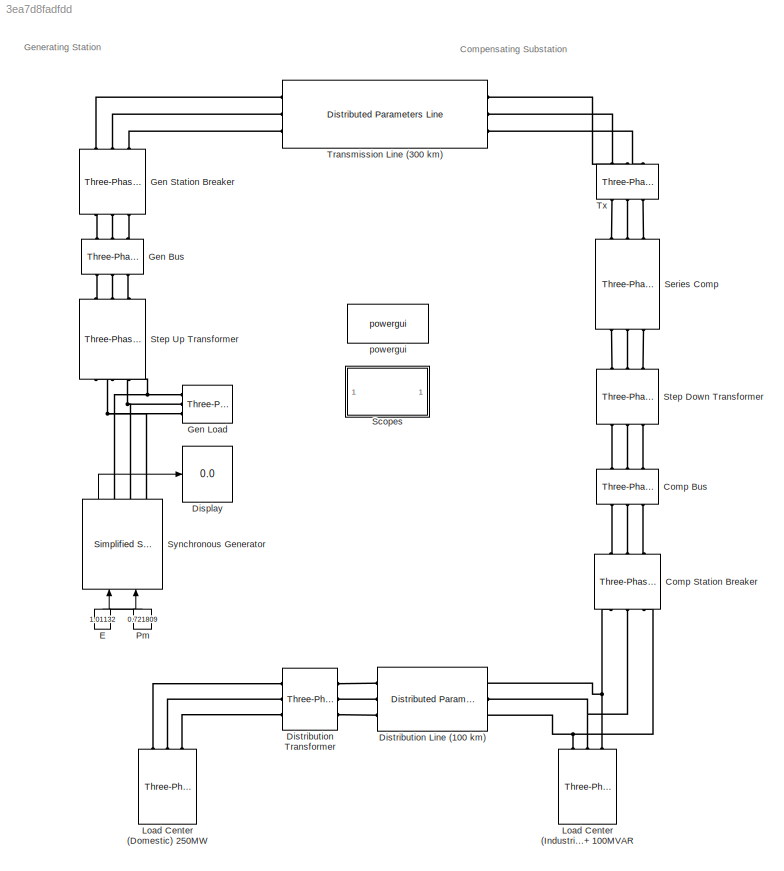
MODEL slx_3ea7d8fadfdd
KIND model
CONFIG AbsTol = auto
CONFIG EnableMultiTasking = off
CONFIG FixedStep = auto
CONFIG MaxStep = auto
CONFIG MinStep = auto
CONFIG RelTol = 1e-3
CONFIG SampleTimeConstraint = Unconstrained
CONFIG Solver = VariableStepAuto
CONFIG SolverName = VariableStepAuto
CONFIG StartTime = 0.0
CONFIG StopTime = 0.1
BLOCK [Reference] Comp Bus  REF=powerlib/Measurements/Three-Phase
V-I Measurement
  NameLocation = left
  Ports = [0, 0, 0, 0, 0, 3, 3]
  SourceBlock = powerlib/Measurements/Three-Phase\nV-I Measurement
  SourceProductBaseCode = PS
  SourceType = Three-Phase VI Measurement
BLOCK [Reference] Comp Station Breaker  REF=powerlib/Elements/Three-Phase Breaker
  NameLocation = left
  Ports = [0, 0, 0, 0, 0, 3, 3]
  SourceBlock = powerlib/Elements/Three-Phase Breaker
  SourceProductBaseCode = PS
  SourceType = Three-Phase Breaker
BLOCK [Display] Display
  Decimation = 1
  Ports = [1]
BLOCK [Reference] Distribution Line (100 km)  REF=powerlib/Elements/Distributed Parameters Line
  Ports = [0, 0, 0, 0, 0, 3, 3]
  SourceBlock = powerlib/Elements/Distributed Parameters Line
  SourceProductBaseCode = PS
  SourceType = Distributed Parameters Line
BLOCK [Reference] Distribution Transformer  REF=powerlib/Elements/Three-Phase
Transformer
(Two Windings)
  Ports = [0, 0, 0, 0, 0, 3, 3]
  SourceBlock = powerlib/Elements/Three-Phase\nTransformer\n(Two Windings)
  SourceProductBaseCode = PS
  SourceType = Three-Phase Transformer (Two Windings)
BLOCK [Constant] E
  NameLocation = right
  Value = 1.01132
BLOCK [Reference] Gen Bus  REF=powerlib/Measurements/Three-Phase
V-I Measurement
  NameLocation = right
  Ports = [0, 0, 0, 0, 0, 3, 3]
  SourceBlock = powerlib/Measurements/Three-Phase\nV-I Measurement
  SourceProductBaseCode = PS
  SourceType = Three-Phase VI Measurement
BLOCK [Reference] Gen Load  REF=powerlib/Elements/Three-Phase
Series RLC Load
  AttributesFormatString = \n
  NameLocation = top
  Ports = [0, 0, 0, 0, 0, 3]
  SourceBlock = powerlib/Elements/Three-Phase\nSeries RLC Load
  SourceProductBaseCode = PS
  SourceType = Three-Phase Series RLC Load
BLOCK [Reference] Gen Station Breaker  REF=powerlib/Elements/Three-Phase Breaker
  NameLocation = right
  Ports = [0, 0, 0, 0, 0, 3, 3]
  SourceBlock = powerlib/Elements/Three-Phase Breaker
  SourceProductBaseCode = PS
  SourceType = Three-Phase Breaker
BLOCK [Reference] Load Center (Domestic) 250MW  REF=powerlib/Elements/Three-Phase
Series RLC Load
  AttributesFormatString = \n
  NameLocation = right
  Ports = [0, 0, 0, 0, 0, 3]
  SourceBlock = powerlib/Elements/Three-Phase\nSeries RLC Load
  SourceProductBaseCode = PS
  SourceType = Three-Phase Series RLC Load
BLOCK [Reference] Load Center (Industrial) 650MW + 100MVAR  REF=powerlib/Elements/Three-Phase
Series RLC Load
  AttributesFormatString = \n
  NameLocation = right
  Ports = [0, 0, 0, 0, 0, 3]
  SourceBlock = powerlib/Elements/Three-Phase\nSeries RLC Load
  SourceProductBaseCode = PS
  SourceType = Three-Phase Series RLC Load
BLOCK [Constant] Pm
  NameLocation = right
  Value = 0.721809
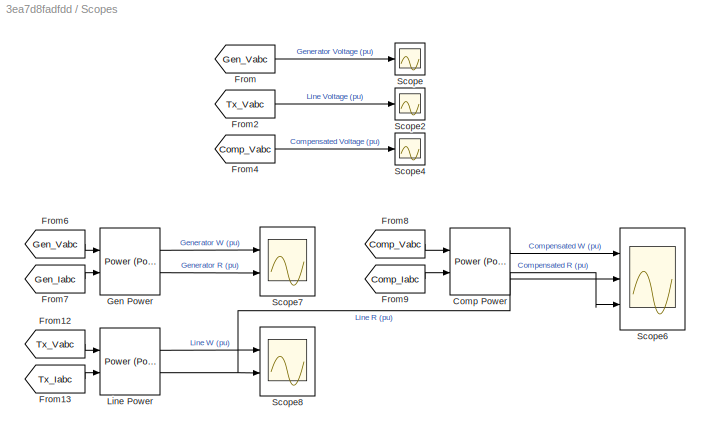
BLOCK [SubSystem] Scopes
  Ports = []
  RequestExecContextInheritance = off
BLOCK [Reference] Scopes/Comp Power  REF=powerlib_meascontrol/Measurements/Power
(Positive-Sequence)
  Ports = [2, 2]
  SourceBlock = powerlib_meascontrol/Measurements/Power\n(Positive-Sequence)
  SourceProductBaseCode = PS
  SourceType = Power (Positive-Sequence)
BLOCK [From] Scopes/From
  GotoTag = Gen_Vabc
  TagVisibility = global
BLOCK [From] Scopes/From12
  GotoTag = Tx_Vabc
  TagVisibility = global
BLOCK [From] Scopes/From13
  GotoTag = Tx_Iabc
  TagVisibility = global
BLOCK [From] Scopes/From2
  GotoTag = Tx_Vabc
  TagVisibility = global
BLOCK [From] Scopes/From4
  GotoTag = Comp_Vabc
  TagVisibility = global
BLOCK [From] Scopes/From6
  GotoTag = Gen_Vabc
  TagVisibility = global
BLOCK [From] Scopes/From7
  GotoTag = Gen_Iabc
  TagVisibility = global
BLOCK [From] Scopes/From8
  GotoTag = Comp_Vabc
  TagVisibility = global
BLOCK [From] Scopes/From9
  GotoTag = Comp_Iabc
  TagVisibility = global
BLOCK [Reference] Scopes/Gen Power  REF=powerlib_meascontrol/Measurements/Power
(Positive-Sequence)
  Ports = [2, 2]
  SourceBlock = powerlib_meascontrol/Measurements/Power\n(Positive-Sequence)
  SourceProductBaseCode = PS
  SourceType = Power (Positive-Sequence)
BLOCK [Reference] Scopes/Line Power  REF=powerlib_meascontrol/Measurements/Power
(Positive-Sequence)
  Ports = [2, 2]
  SourceBlock = powerlib_meascontrol/Measurements/Power\n(Positive-Sequence)
  SourceProductBaseCode = PS
  SourceType = Power (Positive-Sequence)
BLOCK [Scope] Scopes/Scope
  Floating = off
  NumInputPorts = 1
  Ports = [1]
  ScopeSpecificationString = Simulink.scopes.TimeScopeBlockCfg('CurrentConfiguration', extmgr.ConfigurationSet(extmgr.Configuration('Core','General UI',true,'FigureColor',[1 1 1]),extmgr.Configuration('Core','Source UI',true),extmgr.Configuration('Sources','WiredSimulink',true),extmgr.Configuration('Visuals','Time Domain',true,'SerializedDisplays',{struct('MinYLimReal','-1.38743','MaxYLimReal','1.47267','YLabelReal','','MinYL...<+1998ch>
BLOCK [Scope] Scopes/Scope2
  Floating = off
  NumInputPorts = 1
  Ports = [1]
  ScopeSpecificationString = Simulink.scopes.TimeScopeBlockCfg('CurrentConfiguration', extmgr.ConfigurationSet(extmgr.Configuration('Core','General UI',true),extmgr.Configuration('Core','Source UI',true),extmgr.Configuration('Sources','WiredSimulink',true,'DataLoggingVariableName','ScopeData2'),extmgr.Configuration('Visuals','Time Domain',true,'SerializedDisplays',{struct('MinYLimReal','-1.45377','MaxYLimReal','1.63883','YLab...<+1477ch>
BLOCK [Scope] Scopes/Scope4
  Floating = off
  NumInputPorts = 1
  Ports = [1]
  ScopeSpecificationString = Simulink.scopes.TimeScopeBlockCfg('CurrentConfiguration', extmgr.ConfigurationSet(extmgr.Configuration('Core','General UI',true),extmgr.Configuration('Core','Source UI',true),extmgr.Configuration('Sources','WiredSimulink',true,'DataLoggingVariableName','ScopeData4'),extmgr.Configuration('Visuals','Time Domain',true,'SerializedDisplays',{struct('MinYLimReal','-1.36686','MaxYLimReal','1.48529','YLab...<+1471ch>
BLOCK [Scope] Scopes/Scope6
  Floating = off
  NumInputPorts = 3
  Ports = [3]
  ScopeSpecificationString = Simulink.scopes.TimeScopeBlockCfg('CurrentConfiguration', extmgr.ConfigurationSet(extmgr.Configuration('Core','General UI',true,'FigureColor',[1 1 1]),extmgr.Configuration('Core','Source UI',true),extmgr.Configuration('Sources','WiredSimulink',true,'DataLoggingVariableName','ScopeData1'),extmgr.Configuration('Visuals','Time Domain',true,'SerializedDisplays',{struct('MinYLimReal','-0.18934','MaxYLi...<+1987ch>
BLOCK [Scope] Scopes/Scope7
  Floating = off
  NumInputPorts = 2
  Ports = [2]
  ScopeSpecificationString = Simulink.scopes.TimeScopeBlockCfg('CurrentConfiguration', extmgr.ConfigurationSet(extmgr.Configuration('Core','General UI',true),extmgr.Configuration('Core','Source UI',true),extmgr.Configuration('Sources','WiredSimulink',true,'DataLoggingVariableName','ScopeData2'),extmgr.Configuration('Visuals','Time Domain',true,'SerializedDisplays',{struct('MinYLimReal','-1.0349','MaxYLimReal','1.82556','YLabe...<+1419ch>
BLOCK [Scope] Scopes/Scope8
  Floating = off
  NumInputPorts = 2
  Ports = [2]
  ScopeSpecificationString = Simulink.scopes.TimeScopeBlockCfg('CurrentConfiguration', extmgr.ConfigurationSet(extmgr.Configuration('Core','General UI',true),extmgr.Configuration('Core','Source UI',true),extmgr.Configuration('Sources','WiredSimulink',true,'DataLoggingVariableName','ScopeData3'),extmgr.Configuration('Visuals','Time Domain',true,'SerializedDisplays',{struct('MinYLimReal','-0.19057','MaxYLimReal','1.71512','YLab...<+1413ch>
BLOCK [Reference] Series Comp  REF=powerlib/Elements/Three-Phase
Parallel RLC Branch
  AttributesFormatString = \n
  NameLocation = left
  Ports = [0, 0, 0, 0, 0, 3, 3]
  SourceBlock = powerlib/Elements/Three-Phase\nParallel RLC Branch
  SourceProductBaseCode = PS
  SourceType = Three-Phase Parallel RLC Branch
BLOCK [Reference] Step Down Transformer  REF=powerlib/Elements/Three-Phase
Transformer
(Two Windings)
  NameLocation = left
  Ports = [0, 0, 0, 0, 0, 3, 3]
  SourceBlock = powerlib/Elements/Three-Phase\nTransformer\n(Two Windings)
  SourceProductBaseCode = PS
  SourceType = Three-Phase Transformer (Two Windings)
BLOCK [Reference] Step Up Transformer  REF=powerlib/Elements/Three-Phase
Transformer
(Two Windings)
  NameLocation = right
  Ports = [0, 0, 0, 0, 0, 3, 3]
  SourceBlock = powerlib/Elements/Three-Phase\nTransformer\n(Two Windings)
  SourceProductBaseCode = PS
  SourceType = Three-Phase Transformer (Two Windings)
BLOCK [Reference] Synchronous Generator  REF=powerlib/Machines/Simplified Synchronous
Machine pu Units
  AttributesFormatString = \n
  NameLocation = right
  Ports = [2, 1, 0, 0, 0, 0, 3]
  SourceBlock = powerlib/Machines/Simplified Synchronous\nMachine pu Units
  SourceProductBaseCode = MT,PS
  SourceType = Simplified Synchronous Machine
BLOCK [Reference] Transmission Line (300 km)  REF=powerlib/Elements/Distributed Parameters Line
  Ports = [0, 0, 0, 0, 0, 3, 3]
  SourceBlock = powerlib/Elements/Distributed Parameters Line
  SourceProductBaseCode = PS
  SourceType = Distributed Parameters Line
BLOCK [Reference] Tx  REF=powerlib/Measurements/Three-Phase
V-I Measurement
  NameLocation = left
  Ports = [0, 0, 0, 0, 0, 3, 3]
  SourceBlock = powerlib/Measurements/Three-Phase\nV-I Measurement
  SourceProductBaseCode = PS
  SourceType = Three-Phase VI Measurement
BLOCK [Reference] powergui  REF=powerlib/powergui
  Ports = []
  Priority = 1
  SourceBlock = powerlib/powergui
  SourceProductBaseCode = PS
  SourceType = PSB option menu block
ANNOTATION (root): Compensating Substation
ANNOTATION (root): Generating Station
LINE E:1 -> Synchronous Generator:2
LINE Pm:1 -> Synchronous Generator:1
LINE Scopes/Comp Power:1 -> Scopes/Scope6:1
LINE Scopes/Comp Power:2 -> Scopes/Scope6:3
LINE Scopes/From12:1 -> Scopes/Line Power:1
LINE Scopes/From13:1 -> Scopes/Line Power:2
LINE Scopes/From2:1 -> Scopes/Scope2:1
LINE Scopes/From4:1 -> Scopes/Scope4:1
LINE Scopes/From6:1 -> Scopes/Gen Power:1
LINE Scopes/From7:1 -> Scopes/Gen Power:2
LINE Scopes/From8:1 -> Scopes/Comp Power:1
LINE Scopes/From9:1 -> Scopes/Comp Power:2
LINE Scopes/From:1 -> Scopes/Scope:1
LINE Scopes/Gen Power:1 -> Scopes/Scope7:1
LINE Scopes/Gen Power:2 -> Scopes/Scope7:2
LINE Scopes/Line Power:1 -> Scopes/Scope8:1
NET Scopes/Line Power:2 -> Scopes/Scope6:2, Scopes/Scope8:2
LINE Synchronous Generator:1 -> Display:1
PLINE Comp Bus:LConn1 -- Step Down Transformer:RConn1
PLINE Comp Bus:LConn2 -- Step Down Transformer:RConn2
PLINE Comp Bus:LConn3 -- Step Down Transformer:RConn3
PLINE Comp Bus:RConn1 -- Comp Station Breaker:LConn1
PLINE Comp Bus:RConn2 -- Comp Station Breaker:LConn2
PLINE Comp Bus:RConn3 -- Comp Station Breaker:LConn3
PNET net1: Comp Station Breaker:RConn1 -- Distribution Line (100 km):LConn1 -- Load Center (Industrial) 650MW + 100MVAR:LConn3
PNET net2: Comp Station Breaker:RConn2 -- Distribution Line (100 km):LConn2 -- Load Center (Industrial) 650MW + 100MVAR:LConn2
PNET net3: Comp Station Breaker:RConn3 -- Distribution Line (100 km):LConn3 -- Load Center (Industrial) 650MW + 100MVAR:LConn1
PLINE Distribution Line (100 km):RConn1 -- Distribution Transformer:LConn1
PLINE Distribution Line (100 km):RConn2 -- Distribution Transformer:LConn2
PLINE Distribution Line (100 km):RConn3 -- Distribution Transformer:LConn3
PLINE Distribution Transformer:RConn1 -- Load Center (Domestic) 250MW:LConn1
PLINE Distribution Transformer:RConn2 -- Load Center (Domestic) 250MW:LConn2
PLINE Distribution Transformer:RConn3 -- Load Center (Domestic) 250MW:LConn3
PLINE Gen Bus:LConn1 -- Step Up Transformer:RConn1
PLINE Gen Bus:LConn2 -- Step Up Transformer:RConn2
PLINE Gen Bus:LConn3 -- Step Up Transformer:RConn3
PLINE Gen Bus:RConn1 -- Gen Station Breaker:LConn1
PLINE Gen Bus:RConn2 -- Gen Station Breaker:LConn2
PLINE Gen Bus:RConn3 -- Gen Station Breaker:LConn3
PNET net4: Gen Load:LConn1 -- Step Up Transformer:LConn1 -- Synchronous Generator:RConn1
PNET net5: Gen Load:LConn2 -- Step Up Transformer:LConn2 -- Synchronous Generator:RConn2
PNET net6: Gen Load:LConn3 -- Step Up Transformer:LConn3 -- Synchronous Generator:RConn3
PLINE Gen Station Breaker:RConn1 -- Transmission Line (300 km):LConn1
PLINE Gen Station Breaker:RConn2 -- Transmission Line (300 km):LConn2
PLINE Gen Station Breaker:RConn3 -- Transmission Line (300 km):LConn3
PLINE Series Comp:LConn1 -- Tx:RConn1
PLINE Series Comp:LConn2 -- Tx:RConn2
PLINE Series Comp:LConn3 -- Tx:RConn3
PLINE Series Comp:RConn1 -- Step Down Transformer:LConn1
PLINE Series Comp:RConn2 -- Step Down Transformer:LConn2
PLINE Series Comp:RConn3 -- Step Down Transformer:LConn3
PLINE Transmission Line (300 km):RConn1 -- Tx:LConn1
PLINE Transmission Line (300 km):RConn2 -- Tx:LConn2
PLINE Transmission Line (300 km):RConn3 -- Tx:LConn3
note: NET lines group one-source signal fan-out (src -> all destinations, sorted); 1:1 wires keep LINE; PNET lines group multi-terminal physical nets as a canonical sorted terminal list (undirected conserving connections); 2-terminal nets keep the pairwise PLINE form
